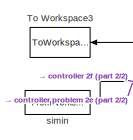
[diagram: root canvas - part 1/2, top left region]
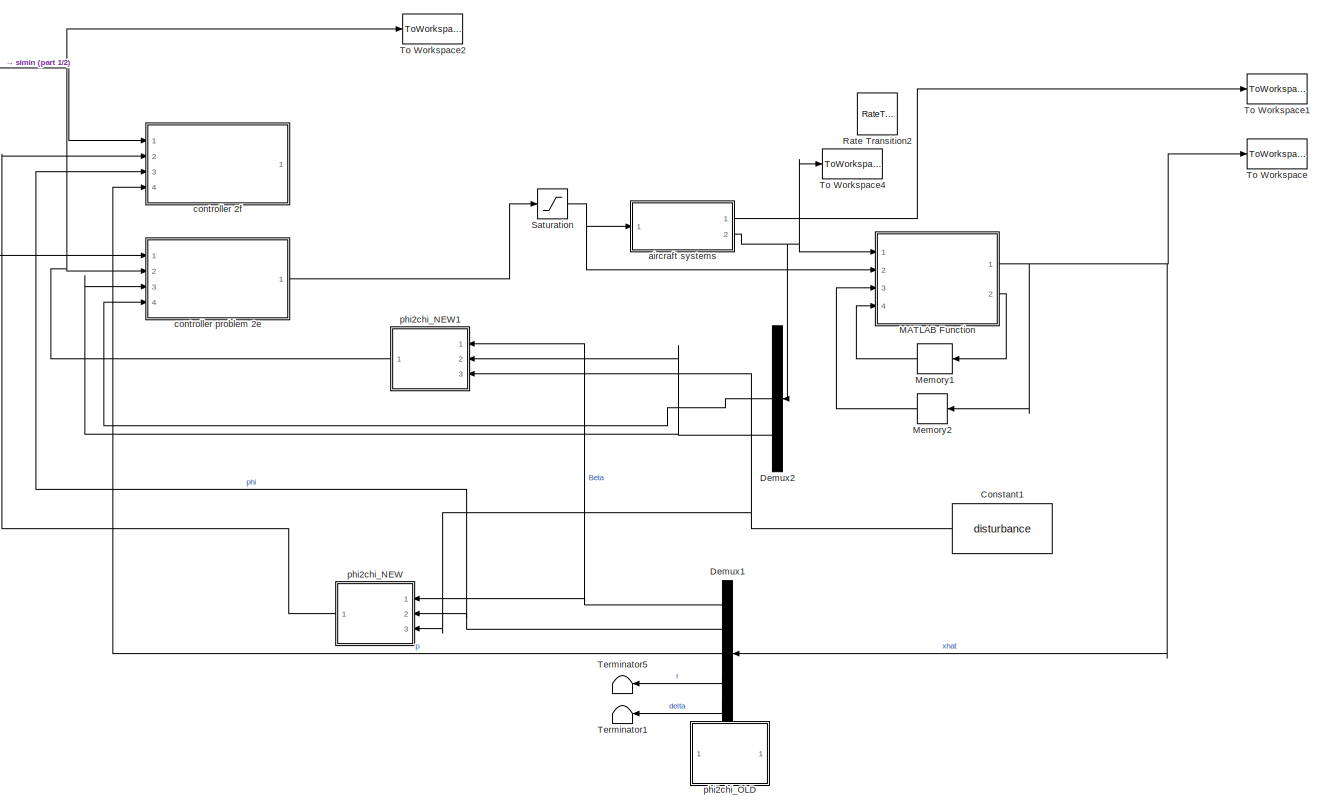
[diagram: root canvas - part 2/2, most of the canvas]
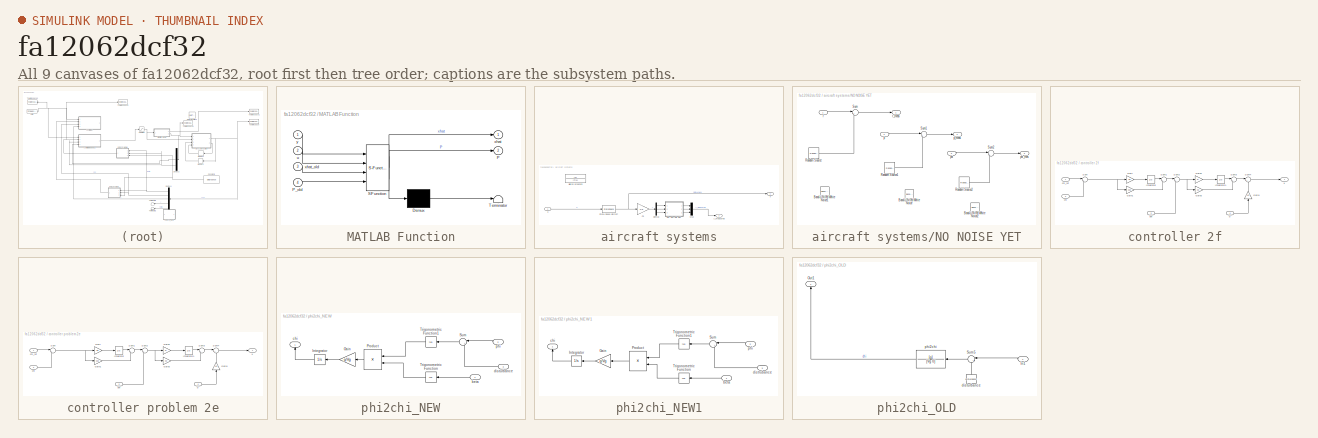
[diagram: thumbnail index - all 9 canvases of the model, root first then tree order]
MODEL slx_fa12062dcf32
KIND model
CONFIG AbsTol = auto
CONFIG FixedStep = auto
CONFIG MaxStep = auto
CONFIG MinStep = auto
CONFIG RelTol = 1e-3
CONFIG SampleTimeConstraint = Unconstrained
CONFIG Solver = FixedStepAuto
CONFIG SolverMode = SingleTasking
CONFIG SolverName = FixedStepAuto
CONFIG StartTime = 0.0
CONFIG StopTime = T
BLOCK [Constant] Constant1
  Value = disturbance
BLOCK [Demux] Demux1
  DisplayOption = bar
  Outputs = 5
  Ports = [1, 5]
BLOCK [Demux] Demux2
  DisplayOption = bar
  Outputs = 3
  Ports = [1, 3]
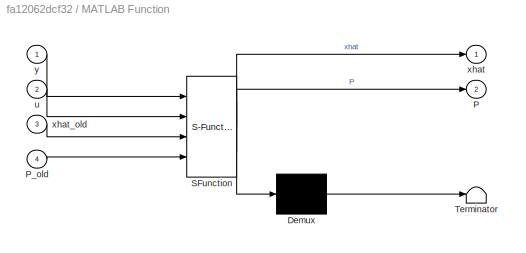
BLOCK [SubSystem] MATLAB Function
  ErrorFcn = Stateflow.Translate.translate
  PermitHierarchicalResolution = ExplicitOnly
  Ports = [4, 2]
  RequestExecContextInheritance = off
  SFBlockType = MATLAB Function
  TreatAsAtomicUnit = on
  Variant = off
BLOCK [Demux] MATLAB Function/ Demux 
  Outputs = 1
  Ports = [1, 1]
BLOCK [S-Function] MATLAB Function/ SFunction 
  EnableBusSupport = on
  FunctionName = sf_sfun
  PortCounts = [4 3]
  Ports = [4, 3]
  SFunctionDeploymentMode = off
  Tag = Stateflow S-Function sys_with_kalman_2016 2
BLOCK [Terminator] MATLAB Function/ Terminator 
BLOCK [Outport] MATLAB Function/P
  IconDisplay = Port number
  Port = 2
BLOCK [Inport] MATLAB Function/P_old
  IconDisplay = Port number
  Port = 4
BLOCK [Inport] MATLAB Function/u
  IconDisplay = Port number
  Port = 2
BLOCK [Outport] MATLAB Function/xhat
  IconDisplay = Port number
BLOCK [Inport] MATLAB Function/xhat_old
  IconDisplay = Port number
  Port = 3
BLOCK [Inport] MATLAB Function/y
  IconDisplay = Port number
BLOCK [Memory] Memory1
  X0 = P_0
BLOCK [Memory] Memory2
  X0 = xhat_0
BLOCK [RateTransition] Rate Transition2
  OutPortSampleTime = samplingfrequency
BLOCK [Saturate] Saturation
  InputPortMap = u0
  LowerLimit = -25*deg2rad
  Ports = [1, 1]
  UpperLimit = 25*deg2rad
BLOCK [Terminator] Terminator1
BLOCK [Terminator] Terminator5
BLOCK [ToWorkspace] To Workspace
  FixptAsFi = on
  MaxDataPoints = inf
  Ports = [1]
  SampleTime = -1
  Save2DSignal = 3-D array (concatenate along third dimension)
  SaveFormat = Timeseries
  VariableName = xhat
BLOCK [ToWorkspace] To Workspace1
  FixptAsFi = on
  MaxDataPoints = inf
  Ports = [1]
  SampleTime = -1
  Save2DSignal = 3-D array (concatenate along third dimension)
  SaveFormat = Timeseries
  VariableName = x
BLOCK [ToWorkspace] To Workspace2
  FixptAsFi = on
  MaxDataPoints = inf
  Ports = [1]
  SampleTime = -1
  Save2DSignal = 3-D array (concatenate along third dimension)
  SaveFormat = Timeseries
  VariableName = chi
BLOCK [ToWorkspace] To Workspace3
  FixptAsFi = on
  MaxDataPoints = inf
  Ports = [1]
  SampleTime = -1
  Save2DSignal = 3-D array (concatenate along third dimension)
  SaveFormat = Timeseries
  VariableName = chi_ref
BLOCK [ToWorkspace] To Workspace4
  FixptAsFi = on
  MaxDataPoints = inf
  Ports = [1]
  SampleTime = -1
  Save2DSignal = 3-D array (concatenate along third dimension)
  SaveFormat = Timeseries
  VariableName = y_measured
BLOCK [SubSystem] aircraft systems
  Ports = [1, 2]
  RequestExecContextInheritance = off
  Variant = off
BLOCK [Gain] aircraft systems/C3
  Gain = C3
  Multiplication = Matrix(K*u) (u vector)
  OutDataTypeStr = Inherit: Inherit via internal rule
  ParamDataTypeStr = Inherit: Inherit via internal rule
  SaturateOnIntegerOverflow = off
BLOCK [Demux] aircraft systems/Demux
  DisplayOption = bar
  Outputs = 3
  Ports = [1, 3]
BLOCK [Mux] aircraft systems/Mux
  DisplayOption = bar
  Inputs = 3
  Ports = [3, 1]
BLOCK [SubSystem] aircraft systems/NO NOISE YET
  Ports = [3, 3]
  RequestExecContextInheritance = off
  Variant = off
BLOCK [Reference] aircraft systems/NO NOISE YET/Band-Limited White Noise  REF=simulink/Sources/Band-Limited
White Noise
  Ports = [0, 1]
  SourceBlock = simulink/Sources/Band-Limited\nWhite Noise
  SourceType = Band-Limited White Noise.
BLOCK [Reference] aircraft systems/NO NOISE YET/Band-Limited White Noise1  REF=simulink/Sources/Band-Limited
White Noise
  Ports = [0, 1]
  SourceBlock = simulink/Sources/Band-Limited\nWhite Noise
  SourceType = Band-Limited White Noise.
BLOCK [Reference] aircraft systems/NO NOISE YET/Band-Limited White Noise2  REF=simulink/Sources/Band-Limited
White Noise
  Ports = [0, 1]
  SourceBlock = simulink/Sources/Band-Limited\nWhite Noise
  SourceType = Band-Limited White Noise.
BLOCK [Reference] aircraft systems/NO NOISE YET/Random Source  REF=dspsrcs4/Random
Source
  Ports = [0, 1]
  SourceBlock = dspsrcs4/Random\nSource
  SourceType = Random Source
  UserDataPersistent = on
BLOCK [Reference] aircraft systems/NO NOISE YET/Random Source1  REF=dspsrcs4/Random
Source
  Ports = [0, 1]
  SourceBlock = dspsrcs4/Random\nSource
  SourceType = Random Source
  UserDataPersistent = on
BLOCK [Reference] aircraft systems/NO NOISE YET/Random Source2  REF=dspsrcs4/Random
Source
  Ports = [0, 1]
  SourceBlock = dspsrcs4/Random\nSource
  SourceType = Random Source
  UserDataPersistent = on
BLOCK [Sum] aircraft systems/NO NOISE YET/Sum
  IconShape = round
  InputSameDT = off
  Inputs = |++
  OutDataTypeStr = Inherit: Inherit via internal rule
  Ports = [2, 1]
  SaturateOnIntegerOverflow = off
BLOCK [Sum] aircraft systems/NO NOISE YET/Sum1
  IconShape = round
  InputSameDT = off
  Inputs = |++
  OutDataTypeStr = Inherit: Inherit via internal rule
  Ports = [2, 1]
  SaturateOnIntegerOverflow = off
BLOCK [Sum] aircraft systems/NO NOISE YET/Sum2
  IconShape = round
  InputSameDT = off
  Inputs = |++
  OutDataTypeStr = Inherit: Inherit via internal rule
  Ports = [2, 1]
  SaturateOnIntegerOverflow = off
BLOCK [Inport] aircraft systems/NO NOISE YET/p
  IconDisplay = Port number
  Port = 2
BLOCK [Outport] aircraft systems/NO NOISE YET/p_meas
  IconDisplay = Port number
  Port = 2
BLOCK [Inport] aircraft systems/NO NOISE YET/phi
  IconDisplay = Port number
  Port = 3
BLOCK [Outport] aircraft systems/NO NOISE YET/phi_mes
  IconDisplay = Port number
  Port = 3
BLOCK [Inport] aircraft systems/NO NOISE YET/r
  IconDisplay = Port number
BLOCK [Outport] aircraft systems/NO NOISE YET/r_meas
  IconDisplay = Port number
BLOCK [StateSpace] aircraft systems/State-Space aircraft
  A = A
  B = B
  C = eye(5)
  D = D
  Ports = [1, 1]
  X0 = 0
BLOCK [TransferFcn] aircraft systems/aileron dynamics
  Denominator = [Tl 1]
BLOCK [Inport] aircraft systems/u
  IconDisplay = Port number
BLOCK [Outport] aircraft systems/x
  IconDisplay = Port number
BLOCK [Outport] aircraft systems/y_measured
  IconDisplay = Port number
  Port = 2
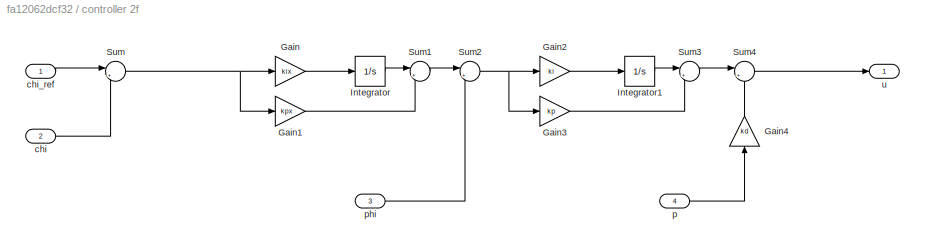
BLOCK [SubSystem] controller 2f
  Ports = [4, 1]
  RequestExecContextInheritance = off
  Variant = off
BLOCK [Gain] controller 2f/Gain
  Gain = kix
  OutDataTypeStr = Inherit: Inherit via internal rule
  ParamDataTypeStr = Inherit: Inherit via internal rule
  SaturateOnIntegerOverflow = off
BLOCK [Gain] controller 2f/Gain1
  Gain = kpx
  OutDataTypeStr = Inherit: Inherit via internal rule
  ParamDataTypeStr = Inherit: Inherit via internal rule
  SaturateOnIntegerOverflow = off
BLOCK [Gain] controller 2f/Gain2
  Gain = ki
  OutDataTypeStr = Inherit: Inherit via internal rule
  ParamDataTypeStr = Inherit: Inherit via internal rule
  SaturateOnIntegerOverflow = off
BLOCK [Gain] controller 2f/Gain3
  Gain = kp
  OutDataTypeStr = Inherit: Inherit via internal rule
  ParamDataTypeStr = Inherit: Inherit via internal rule
  SaturateOnIntegerOverflow = off
BLOCK [Gain] controller 2f/Gain4
  Gain = kd
  OutDataTypeStr = Inherit: Inherit via internal rule
  ParamDataTypeStr = Inherit: Inherit via internal rule
  SaturateOnIntegerOverflow = off
BLOCK [Integrator] controller 2f/Integrator
  Ports = [1, 1]
BLOCK [Integrator] controller 2f/Integrator1
  Ports = [1, 1]
BLOCK [Sum] controller 2f/Sum
  IconShape = round
  InputSameDT = off
  Inputs = |+-
  OutDataTypeStr = Inherit: Inherit via internal rule
  Ports = [2, 1]
  SaturateOnIntegerOverflow = off
BLOCK [Sum] controller 2f/Sum1
  IconShape = round
  InputSameDT = off
  Inputs = |++
  OutDataTypeStr = Inherit: Inherit via internal rule
  Ports = [2, 1]
  SaturateOnIntegerOverflow = off
BLOCK [Sum] controller 2f/Sum2
  IconShape = round
  InputSameDT = off
  Inputs = |+-
  OutDataTypeStr = Inherit: Inherit via internal rule
  Ports = [2, 1]
  SaturateOnIntegerOverflow = off
BLOCK [Sum] controller 2f/Sum3
  IconShape = round
  InputSameDT = off
  Inputs = |++
  OutDataTypeStr = Inherit: Inherit via internal rule
  Ports = [2, 1]
  SaturateOnIntegerOverflow = off
BLOCK [Sum] controller 2f/Sum4
  IconShape = round
  InputSameDT = off
  Inputs = |+-
  OutDataTypeStr = Inherit: Inherit via internal rule
  Ports = [2, 1]
  SaturateOnIntegerOverflow = off
BLOCK [Inport] controller 2f/chi
  IconDisplay = Port number
  Port = 2
BLOCK [Inport] controller 2f/chi_ref
  IconDisplay = Port number
BLOCK [Inport] controller 2f/p
  IconDisplay = Port number
  Port = 4
BLOCK [Inport] controller 2f/phi
  IconDisplay = Port number
  Port = 3
BLOCK [Outport] controller 2f/u
  IconDisplay = Port number
BLOCK [SubSystem] controller problem 2e
  Ports = [4, 1]
  RequestExecContextInheritance = off
  Variant = off
BLOCK [Gain] controller problem 2e/Gain
  Gain = kix
  OutDataTypeStr = Inherit: Inherit via internal rule
  ParamDataTypeStr = Inherit: Inherit via internal rule
  SaturateOnIntegerOverflow = off
BLOCK [Gain] controller problem 2e/Gain1
  Gain = kpx
  OutDataTypeStr = Inherit: Inherit via internal rule
  ParamDataTypeStr = Inherit: Inherit via internal rule
  SaturateOnIntegerOverflow = off
BLOCK [Gain] controller problem 2e/Gain2
  Gain = ki
  OutDataTypeStr = Inherit: Inherit via internal rule
  ParamDataTypeStr = Inherit: Inherit via internal rule
  SaturateOnIntegerOverflow = off
BLOCK [Gain] controller problem 2e/Gain3
  Gain = kp
  OutDataTypeStr = Inherit: Inherit via internal rule
  ParamDataTypeStr = Inherit: Inherit via internal rule
  SaturateOnIntegerOverflow = off
BLOCK [Gain] controller problem 2e/Gain4
  Gain = kd
  OutDataTypeStr = Inherit: Inherit via internal rule
  ParamDataTypeStr = Inherit: Inherit via internal rule
  SaturateOnIntegerOverflow = off
BLOCK [Integrator] controller problem 2e/Integrator
  Ports = [1, 1]
BLOCK [Integrator] controller problem 2e/Integrator1
  Ports = [1, 1]
BLOCK [Sum] controller problem 2e/Sum
  IconShape = round
  InputSameDT = off
  Inputs = |+-
  OutDataTypeStr = Inherit: Inherit via internal rule
  Ports = [2, 1]
  SaturateOnIntegerOverflow = off
BLOCK [Sum] controller problem 2e/Sum1
  IconShape = round
  InputSameDT = off
  Inputs = |++
  OutDataTypeStr = Inherit: Inherit via internal rule
  Ports = [2, 1]
  SaturateOnIntegerOverflow = off
BLOCK [Sum] controller problem 2e/Sum2
  IconShape = round
  InputSameDT = off
  Inputs = |+-
  OutDataTypeStr = Inherit: Inherit via internal rule
  Ports = [2, 1]
  SaturateOnIntegerOverflow = off
BLOCK [Sum] controller problem 2e/Sum3
  IconShape = round
  InputSameDT = off
  Inputs = |++
  OutDataTypeStr = Inherit: Inherit via internal rule
  Ports = [2, 1]
  SaturateOnIntegerOverflow = off
BLOCK [Sum] controller problem 2e/Sum4
  IconShape = round
  InputSameDT = off
  Inputs = |+-
  OutDataTypeStr = Inherit: Inherit via internal rule
  Ports = [2, 1]
  SaturateOnIntegerOverflow = off
BLOCK [Inport] controller problem 2e/chi
  IconDisplay = Port number
  Port = 2
BLOCK [Inport] controller problem 2e/chi_ref
  IconDisplay = Port number
BLOCK [Inport] controller problem 2e/p
  IconDisplay = Port number
  Port = 4
BLOCK [Inport] controller problem 2e/phi
  IconDisplay = Port number
  Port = 3
BLOCK [Outport] controller problem 2e/u
  IconDisplay = Port number
BLOCK [SubSystem] phi2chi_NEW
  Ports = [3, 1]
  RequestExecContextInheritance = off
  Variant = off
BLOCK [Gain] phi2chi_NEW/Gain
  Gain = g/Vg
  OutDataTypeStr = Inherit: Inherit via internal rule
  ParamDataTypeStr = Inherit: Inherit via internal rule
  SaturateOnIntegerOverflow = off
BLOCK [Integrator] phi2chi_NEW/Integrator
  Ports = [1, 1]
BLOCK [Product] phi2chi_NEW/Product
  InputSameDT = off
  OutDataTypeStr = Inherit: Inherit via internal rule
  Ports = [2, 1]
  RndMeth = Floor
  SaturateOnIntegerOverflow = off
BLOCK [Sum] phi2chi_NEW/Sum
  IconShape = round
  InputSameDT = off
  Inputs = |++
  OutDataTypeStr = Inherit: Inherit via internal rule
  Ports = [2, 1]
  SaturateOnIntegerOverflow = off
BLOCK [Trigonometry] phi2chi_NEW/Trigonometric Function
  Operator = cos
  Ports = [1, 1]
BLOCK [Trigonometry] phi2chi_NEW/Trigonometric Function1
  Operator = tan
  Ports = [1, 1]
BLOCK [Inport] phi2chi_NEW/beta 
  IconDisplay = Port number
BLOCK [Outport] phi2chi_NEW/chi
  IconDisplay = Port number
BLOCK [Inport] phi2chi_NEW/disturbance 
  IconDisplay = Port number
  Port = 3
BLOCK [Inport] phi2chi_NEW/phi
  IconDisplay = Port number
  Port = 2
BLOCK [SubSystem] phi2chi_NEW1
  Ports = [3, 1]
  RequestExecContextInheritance = off
  Variant = off
BLOCK [Gain] phi2chi_NEW1/Gain
  Gain = g/Vg
  OutDataTypeStr = Inherit: Inherit via internal rule
  ParamDataTypeStr = Inherit: Inherit via internal rule
  SaturateOnIntegerOverflow = off
BLOCK [Integrator] phi2chi_NEW1/Integrator
  Ports = [1, 1]
BLOCK [Product] phi2chi_NEW1/Product
  InputSameDT = off
  OutDataTypeStr = Inherit: Inherit via internal rule
  Ports = [2, 1]
  RndMeth = Floor
  SaturateOnIntegerOverflow = off
BLOCK [Sum] phi2chi_NEW1/Sum
  IconShape = round
  InputSameDT = off
  Inputs = |++
  OutDataTypeStr = Inherit: Inherit via internal rule
  Ports = [2, 1]
  SaturateOnIntegerOverflow = off
BLOCK [Trigonometry] phi2chi_NEW1/Trigonometric Function
  Operator = cos
  Ports = [1, 1]
BLOCK [Trigonometry] phi2chi_NEW1/Trigonometric Function1
  Operator = tan
  Ports = [1, 1]
BLOCK [Inport] phi2chi_NEW1/beta 
  IconDisplay = Port number
BLOCK [Outport] phi2chi_NEW1/chi
  IconDisplay = Port number
BLOCK [Inport] phi2chi_NEW1/distrubance
  IconDisplay = Port number
  Port = 3
BLOCK [Inport] phi2chi_NEW1/phi
  IconDisplay = Port number
  Port = 2
BLOCK [SubSystem] phi2chi_OLD
  Ports = [1, 1]
  RequestExecContextInheritance = off
  Variant = off
BLOCK [Inport] phi2chi_OLD/In1
  IconDisplay = Port number
BLOCK [Outport] phi2chi_OLD/Out1
  IconDisplay = Port number
BLOCK [Sum] phi2chi_OLD/Sum5
  IconShape = round
  InputSameDT = off
  Inputs = |++
  OutDataTypeStr = Inherit: Inherit via internal rule
  Ports = [2, 1]
  SaturateOnIntegerOverflow = off
BLOCK [Constant] phi2chi_OLD/disturbance
  Value = disturbance
BLOCK [TransferFcn] phi2chi_OLD/phi2chi
  Denominator = [Vg 0]
  Numerator = [g]
BLOCK [FromWorkspace] simin
  SampleTime = 0
  VariableName = simin
  ZeroCross = on
NET Constant1:1 -> phi2chi_NEW1:3, phi2chi_NEW:3
NET Demux1:1 -> phi2chi_NEW1:1, phi2chi_NEW:1
NET Demux1:2 -> controller 2f:3, phi2chi_NEW:2
LINE Demux1:3 -> controller 2f:4
LINE Demux1:4 -> Terminator5:1
LINE Demux1:5 -> Terminator1:1
LINE Demux2:2 -> controller problem 2e:4
NET Demux2:3 -> controller problem 2e:3, phi2chi_NEW1:2
NET MATLAB Function:1 -> Demux1:1, Memory2:1, To Workspace:1
LINE MATLAB Function:2 -> Memory1:1
LINE Memory1:1 -> MATLAB Function:4
LINE Memory2:1 -> MATLAB Function:3
NET Saturation:1 -> MATLAB Function:2, aircraft systems:1
LINE aircraft systems/C3:1 -> aircraft systems/Demux:1
LINE aircraft systems/Demux:1 -> aircraft systems/NO NOISE YET:1
LINE aircraft systems/Demux:2 -> aircraft systems/NO NOISE YET:2
LINE aircraft systems/Demux:3 -> aircraft systems/NO NOISE YET:3
LINE aircraft systems/Mux:1 -> aircraft systems/y_measured:1
LINE aircraft systems/NO NOISE YET/Random Source1:1 -> aircraft systems/NO NOISE YET/Sum1:2
LINE aircraft systems/NO NOISE YET/Random Source2:1 -> aircraft systems/NO NOISE YET/Sum2:2
LINE aircraft systems/NO NOISE YET/Random Source:1 -> aircraft systems/NO NOISE YET/Sum:2
LINE aircraft systems/NO NOISE YET/Sum1:1 -> aircraft systems/NO NOISE YET/p_meas:1
LINE aircraft systems/NO NOISE YET/Sum2:1 -> aircraft systems/NO NOISE YET/phi_mes:1
LINE aircraft systems/NO NOISE YET/Sum:1 -> aircraft systems/NO NOISE YET/r_meas:1
LINE aircraft systems/NO NOISE YET/p:1 -> aircraft systems/NO NOISE YET/Sum1:1
LINE aircraft systems/NO NOISE YET/phi:1 -> aircraft systems/NO NOISE YET/Sum2:1
LINE aircraft systems/NO NOISE YET/r:1 -> aircraft systems/NO NOISE YET/Sum:1
LINE aircraft systems/NO NOISE YET:1 -> aircraft systems/Mux:1
LINE aircraft systems/NO NOISE YET:2 -> aircraft systems/Mux:2
LINE aircraft systems/NO NOISE YET:3 -> aircraft systems/Mux:3
NET aircraft systems/State-Space aircraft:1 -> aircraft systems/C3:1, aircraft systems/x:1
LINE aircraft systems/u:1 -> aircraft systems/State-Space aircraft:1
LINE aircraft systems:1 -> To Workspace1:1
NET aircraft systems:2 -> Demux2:1, MATLAB Function:1, To Workspace4:1
LINE controller 2f/Gain1:1 -> controller 2f/Sum1:2
LINE controller 2f/Gain2:1 -> controller 2f/Integrator1:1
LINE controller 2f/Gain3:1 -> controller 2f/Sum3:2
LINE controller 2f/Gain4:1 -> controller 2f/Sum4:2
LINE controller 2f/Gain:1 -> controller 2f/Integrator:1
LINE controller 2f/Integrator1:1 -> controller 2f/Sum3:1
LINE controller 2f/Integrator:1 -> controller 2f/Sum1:1
LINE controller 2f/Sum1:1 -> controller 2f/Sum2:1
NET controller 2f/Sum2:1 -> controller 2f/Gain2:1, controller 2f/Gain3:1
LINE controller 2f/Sum3:1 -> controller 2f/Sum4:1
LINE controller 2f/Sum4:1 -> controller 2f/u:1
NET controller 2f/Sum:1 -> controller 2f/Gain1:1, controller 2f/Gain:1
LINE controller 2f/chi:1 -> controller 2f/Sum:2
LINE controller 2f/chi_ref:1 -> controller 2f/Sum:1
LINE controller 2f/p:1 -> controller 2f/Gain4:1
LINE controller 2f/phi:1 -> controller 2f/Sum2:2
LINE controller problem 2e/Gain1:1 -> controller problem 2e/Sum1:2
LINE controller problem 2e/Gain2:1 -> controller problem 2e/Integrator1:1
LINE controller problem 2e/Gain3:1 -> controller problem 2e/Sum3:2
LINE controller problem 2e/Gain4:1 -> controller problem 2e/Sum4:2
LINE controller problem 2e/Gain:1 -> controller problem 2e/Integrator:1
LINE controller problem 2e/Integrator1:1 -> controller problem 2e/Sum3:1
LINE controller problem 2e/Integrator:1 -> controller problem 2e/Sum1:1
LINE controller problem 2e/Sum1:1 -> controller problem 2e/Sum2:1
NET controller problem 2e/Sum2:1 -> controller problem 2e/Gain2:1, controller problem 2e/Gain3:1
LINE controller problem 2e/Sum3:1 -> controller problem 2e/Sum4:1
LINE controller problem 2e/Sum4:1 -> controller problem 2e/u:1
NET controller problem 2e/Sum:1 -> controller problem 2e/Gain1:1, controller problem 2e/Gain:1
LINE controller problem 2e/chi:1 -> controller problem 2e/Sum:2
LINE controller problem 2e/chi_ref:1 -> controller problem 2e/Sum:1
LINE controller problem 2e/p:1 -> controller problem 2e/Gain4:1
LINE controller problem 2e/phi:1 -> controller problem 2e/Sum2:2
LINE controller problem 2e:1 -> Saturation:1
LINE phi2chi_NEW/Gain:1 -> phi2chi_NEW/Integrator:1
LINE phi2chi_NEW/Integrator:1 -> phi2chi_NEW/chi:1
LINE phi2chi_NEW/Product:1 -> phi2chi_NEW/Gain:1
LINE phi2chi_NEW/Sum:1 -> phi2chi_NEW/Trigonometric Function1:1
LINE phi2chi_NEW/Trigonometric Function1:1 -> phi2chi_NEW/Product:1
LINE phi2chi_NEW/Trigonometric Function:1 -> phi2chi_NEW/Product:2
LINE phi2chi_NEW/beta :1 -> phi2chi_NEW/Trigonometric Function:1
LINE phi2chi_NEW/disturbance :1 -> phi2chi_NEW/Sum:2
LINE phi2chi_NEW/phi:1 -> phi2chi_NEW/Sum:1
LINE phi2chi_NEW1/Gain:1 -> phi2chi_NEW1/Integrator:1
LINE phi2chi_NEW1/Integrator:1 -> phi2chi_NEW1/chi:1
LINE phi2chi_NEW1/Product:1 -> phi2chi_NEW1/Gain:1
LINE phi2chi_NEW1/Sum:1 -> phi2chi_NEW1/Trigonometric Function1:1
LINE phi2chi_NEW1/Trigonometric Function1:1 -> phi2chi_NEW1/Product:1
LINE phi2chi_NEW1/Trigonometric Function:1 -> phi2chi_NEW1/Product:2
LINE phi2chi_NEW1/beta :1 -> phi2chi_NEW1/Trigonometric Function:1
LINE phi2chi_NEW1/distrubance:1 -> phi2chi_NEW1/Sum:2
LINE phi2chi_NEW1/phi:1 -> phi2chi_NEW1/Sum:1
NET phi2chi_NEW1:1 -> To Workspace2:1, controller problem 2e:2
LINE phi2chi_NEW:1 -> controller 2f:2
LINE phi2chi_OLD/In1:1 -> phi2chi_OLD/Sum5:1
LINE phi2chi_OLD/Sum5:1 -> phi2chi_OLD/phi2chi:1
LINE phi2chi_OLD/disturbance:1 -> phi2chi_OLD/Sum5:2
LINE phi2chi_OLD/phi2chi:1 -> phi2chi_OLD/Out1:1
NET simin:1 -> To Workspace3:1, controller 2f:1, controller problem 2e:1
note: NET lines group one-source signal fan-out (src -> all destinations, sorted); 1:1 wires keep LINE
CHART MATLAB Function states=1 transitions=1
  STATE_LABEL 'eML_blk_kernel()'
  STATE_LABEL "SCRIPT:\nfunction [xhat, P]  = kalman_filter(y,u, xhat_old, P_old)\n\nvars = load('vars.mat');\n%vars2 = load('vars2.mat');\n\n\nx_predicted = vars.A_d*xhat_old + vars.B_d*u;\nP_predicted = vars.A_d*P_old*vars.A_d' + vars.Q;\n\nK_gain = P_predicted*vars.H'*inv(vars.H*P_predicted*vars.H' + vars.R);\nxhat = x_predicted + K_gain*(y - vars.H*x_predicted);\nP = (eye(5) - K_gain*vars.H)*P_predicted;\n\n\n\n\n\n\n\n\n\n\n\n\n"
